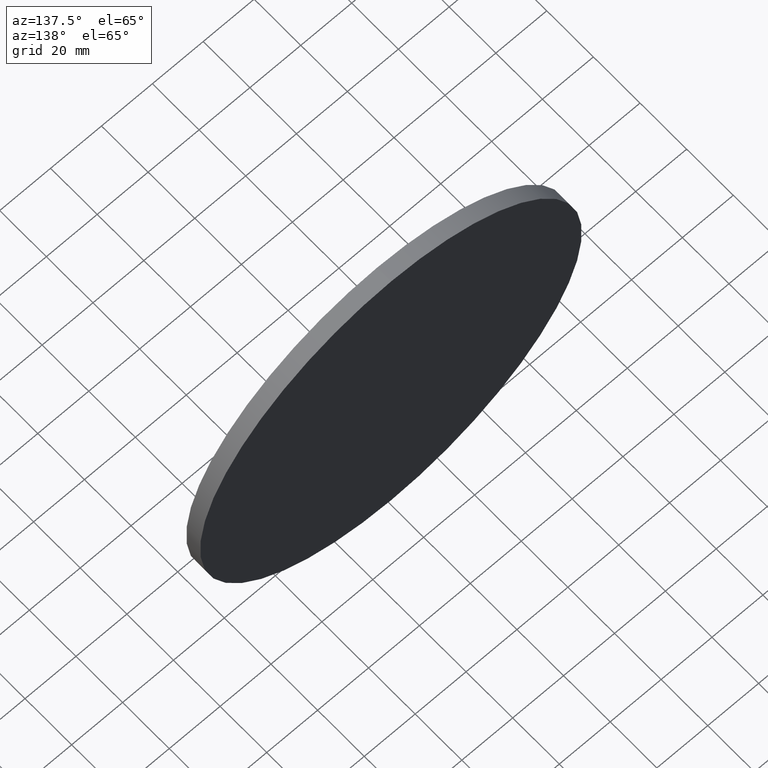
[diagram: clean part render]
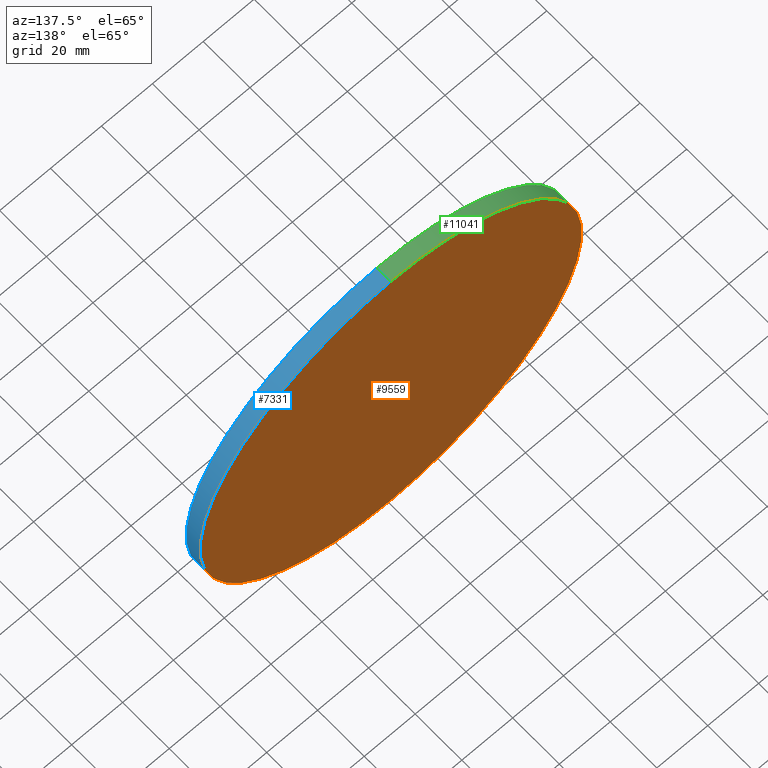
[diagram: same view with three faces highlighted in distinct colors, each labeled with its STEP entity id]
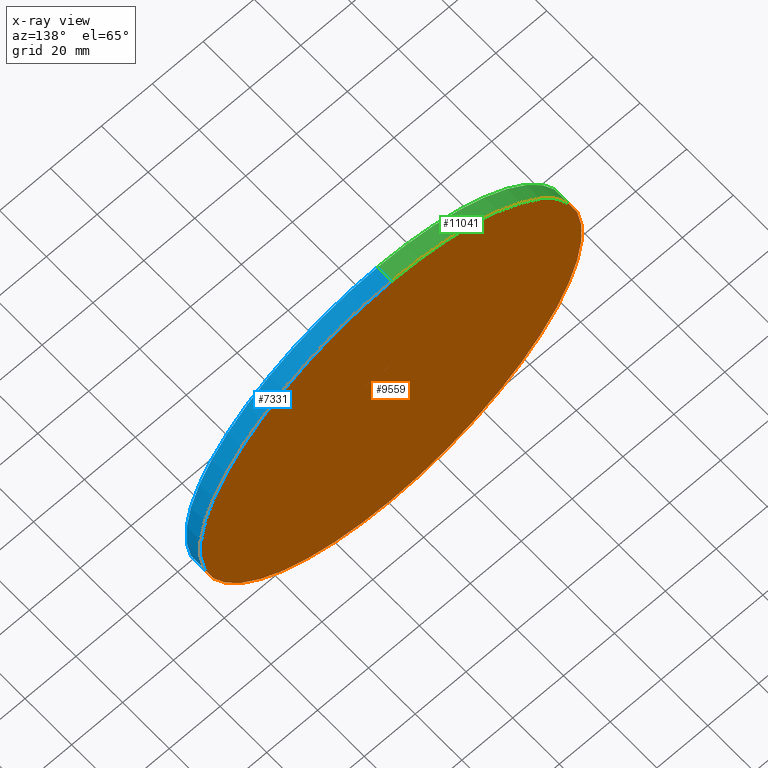
[diagram: x-ray of the same camera — body ghosted, the three highlighted faces saturated]
A machine part, auxiliary view with three faces highlighted in distinct colors.
The next image is the same camera in x-ray (body ghosted, the three faces saturated) — at least one of them is partly hidden behind the body in this view.
Their STEP definitions:

[orange] entity #9559 — the highlighted planar face has unit normal (0, 1, 0).
#367 = DIRECTION ( 'NONE',  ( 0.0000000000000000000, 1.000000000000000000, 0.0000000000000000000 ) ) ;
#1249 = CARTESIAN_POINT ( 'NONE',  ( 0.0000000000000000000, 6.000000000000000000, 0.0000000000000000000 ) ) ;
#1258 = CARTESIAN_POINT ( 'NONE',  ( 9.184850993605150300E-015, 6.000000000000000000, 75.00000000000001400 ) ) ;
#1377 = DIRECTION ( 'NONE',  ( 0.0000000000000000000, 0.0000000000000000000, 1.000000000000000000 ) ) ;
#1733 = AXIS2_PLACEMENT_3D ( 'NONE', #3307, #9606, #6048 ) ;
#1864 = DIRECTION ( 'NONE',  ( 0.0000000000000000000, 1.000000000000000000, 0.0000000000000000000 ) ) ;
#2247 = EDGE_CURVE ( 'NONE', #7227, #7898, #9831, .T. ) ;
#3307 = CARTESIAN_POINT ( 'NONE',  ( 0.0000000000000000000, 6.000000000000000000, 0.0000000000000000000 ) ) ;
#3703 = FACE_OUTER_BOUND ( 'NONE', #10417, .T. ) ;
#5483 = CARTESIAN_POINT ( 'NONE',  ( 0.0000000000000000000, 6.000000000000000000, 0.0000000000000000000 ) ) ;
#6048 = DIRECTION ( 'NONE',  ( 0.0000000000000000000, 0.0000000000000000000, 1.000000000000000000 ) ) ;
#6503 = DIRECTION ( 'NONE',  ( 0.0000000000000000000, -0.0000000000000000000, 1.000000000000000000 ) ) ;
#7227 = VERTEX_POINT ( 'NONE', #1258 ) ;
#7416 = PLANE ( 'NONE',  #8621 ) ;
#7536 = AXIS2_PLACEMENT_3D ( 'NONE', #1249, #367, #1377 ) ;
#7898 = VERTEX_POINT ( 'NONE', #10381 ) ;
#8621 = AXIS2_PLACEMENT_3D ( 'NONE', #5483, #1864, #6503 ) ;
#9173 = ORIENTED_EDGE ( 'NONE', *, *, #2247, .T. ) ;
#9559 = ADVANCED_FACE ( 'NONE', ( #3703 ), #7416, .T. ) ;
#9606 = DIRECTION ( 'NONE',  ( 0.0000000000000000000, 1.000000000000000000, 0.0000000000000000000 ) ) ;
#9653 = ORIENTED_EDGE ( 'NONE', *, *, #11679, .T. ) ;
#9721 = CIRCLE ( 'NONE', #7536, 75.00000000000001400 ) ;
#9831 = CIRCLE ( 'NONE', #1733, 75.00000000000001400 ) ;
#10381 = CARTESIAN_POINT ( 'NONE',  ( 0.0000000000000000000, 6.000000000000000000, -75.00000000000001400 ) ) ;
#10417 = EDGE_LOOP ( 'NONE', ( #9653, #9173 ) ) ;
#11679 = EDGE_CURVE ( 'NONE', #7898, #7227, #9721, .T. ) ;

[blue] entity #7331 — the highlighted cylindrical surface (partial cylindrical patch) has radius 75 mm, axis along (-0, -1, -0).
#426 = CYLINDRICAL_SURFACE ( 'NONE', #4986, 75.00000000000001400 ) ;
#1202 = CARTESIAN_POINT ( 'NONE',  ( 0.0000000000000000000, 0.0000000000000000000, -75.00000000000001400 ) ) ;
#1235 = DIRECTION ( 'NONE',  ( -0.0000000000000000000, -1.000000000000000000, -0.0000000000000000000 ) ) ;
#1258 = CARTESIAN_POINT ( 'NONE',  ( 9.184850993605150300E-015, 6.000000000000000000, 75.00000000000001400 ) ) ;
#1379 = DIRECTION ( 'NONE',  ( -0.0000000000000000000, -1.000000000000000000, -0.0000000000000000000 ) ) ;
#1488 = VECTOR ( 'NONE', #2147, 1000.000000000000000 ) ;
#1497 = EDGE_CURVE ( 'NONE', #10020, #2037, #8833, .T. ) ;
#1733 = AXIS2_PLACEMENT_3D ( 'NONE', #3307, #9606, #6048 ) ;
#2015 = EDGE_CURVE ( 'NONE', #7227, #10020, #3927, .T. ) ;
#2037 = VERTEX_POINT ( 'NONE', #1202 ) ;
#2147 = DIRECTION ( 'NONE',  ( -0.0000000000000000000, -1.000000000000000000, -0.0000000000000000000 ) ) ;
#2193 = ORIENTED_EDGE ( 'NONE', *, *, #10646, .F. ) ;
#2247 = EDGE_CURVE ( 'NONE', #7227, #7898, #9831, .T. ) ;
#2343 = DIRECTION ( 'NONE',  ( 0.0000000000000000000, 1.000000000000000000, 0.0000000000000000000 ) ) ;
#2537 = VECTOR ( 'NONE', #1379, 1000.000000000000000 ) ;
#3307 = CARTESIAN_POINT ( 'NONE',  ( 0.0000000000000000000, 6.000000000000000000, 0.0000000000000000000 ) ) ;
#3327 = DIRECTION ( 'NONE',  ( 0.0000000000000000000, 0.0000000000000000000, 1.000000000000000000 ) ) ;
#3611 = EDGE_LOOP ( 'NONE', ( #7524, #6469, #5406, #2193 ) ) ;
#3927 = LINE ( 'NONE', #9526, #1488 ) ;
#4959 = DIRECTION ( 'NONE',  ( 0.0000000000000000000, 0.0000000000000000000, -1.000000000000000000 ) ) ;
#4986 = AXIS2_PLACEMENT_3D ( 'NONE', #11428, #1235, #4959 ) ;
#5406 = ORIENTED_EDGE ( 'NONE', *, *, #1497, .T. ) ;
#5985 = CARTESIAN_POINT ( 'NONE',  ( 9.184850993605150300E-015, 0.0000000000000000000, 75.00000000000001400 ) ) ;
#6048 = DIRECTION ( 'NONE',  ( 0.0000000000000000000, 0.0000000000000000000, 1.000000000000000000 ) ) ;
#6469 = ORIENTED_EDGE ( 'NONE', *, *, #2015, .T. ) ;
#7227 = VERTEX_POINT ( 'NONE', #1258 ) ;
#7331 = ADVANCED_FACE ( 'NONE', ( #11528 ), #426, .T. ) ;
#7524 = ORIENTED_EDGE ( 'NONE', *, *, #2247, .F. ) ;
#7898 = VERTEX_POINT ( 'NONE', #10381 ) ;
#8833 = CIRCLE ( 'NONE', #9356, 75.00000000000001400 ) ;
#8869 = LINE ( 'NONE', #10538, #2537 ) ;
#9356 = AXIS2_PLACEMENT_3D ( 'NONE', #10688, #2343, #3327 ) ;
#9526 = CARTESIAN_POINT ( 'NONE',  ( 9.184850993605150300E-015, 6.000000000000000000, 75.00000000000001400 ) ) ;
#9606 = DIRECTION ( 'NONE',  ( 0.0000000000000000000, 1.000000000000000000, 0.0000000000000000000 ) ) ;
#9831 = CIRCLE ( 'NONE', #1733, 75.00000000000001400 ) ;
#10020 = VERTEX_POINT ( 'NONE', #5985 ) ;
#10381 = CARTESIAN_POINT ( 'NONE',  ( 0.0000000000000000000, 6.000000000000000000, -75.00000000000001400 ) ) ;
#10538 = CARTESIAN_POINT ( 'NONE',  ( 0.0000000000000000000, 6.000000000000000000, -75.00000000000001400 ) ) ;
#10646 = EDGE_CURVE ( 'NONE', #7898, #2037, #8869, .T. ) ;
#10688 = CARTESIAN_POINT ( 'NONE',  ( 0.0000000000000000000, 0.0000000000000000000, 0.0000000000000000000 ) ) ;
#11428 = CARTESIAN_POINT ( 'NONE',  ( 0.0000000000000000000, 6.000000000000000000, 0.0000000000000000000 ) ) ;
#11528 = FACE_OUTER_BOUND ( 'NONE', #3611, .T. ) ;

[green] entity #11041 — the highlighted cylindrical surface (partial cylindrical patch) has radius 75 mm, axis along (-0, -1, -0).
#97 = CYLINDRICAL_SURFACE ( 'NONE', #10477, 75.00000000000001400 ) ;
#367 = DIRECTION ( 'NONE',  ( 0.0000000000000000000, 1.000000000000000000, 0.0000000000000000000 ) ) ;
#387 = AXIS2_PLACEMENT_3D ( 'NONE', #7361, #8089, #2852 ) ;
#1202 = CARTESIAN_POINT ( 'NONE',  ( 0.0000000000000000000, 0.0000000000000000000, -75.00000000000001400 ) ) ;
#1249 = CARTESIAN_POINT ( 'NONE',  ( 0.0000000000000000000, 6.000000000000000000, 0.0000000000000000000 ) ) ;
#1258 = CARTESIAN_POINT ( 'NONE',  ( 9.184850993605150300E-015, 6.000000000000000000, 75.00000000000001400 ) ) ;
#1377 = DIRECTION ( 'NONE',  ( 0.0000000000000000000, 0.0000000000000000000, 1.000000000000000000 ) ) ;
#1379 = DIRECTION ( 'NONE',  ( -0.0000000000000000000, -1.000000000000000000, -0.0000000000000000000 ) ) ;
#1488 = VECTOR ( 'NONE', #2147, 1000.000000000000000 ) ;
#2015 = EDGE_CURVE ( 'NONE', #7227, #10020, #3927, .T. ) ;
#2037 = VERTEX_POINT ( 'NONE', #1202 ) ;
#2147 = DIRECTION ( 'NONE',  ( -0.0000000000000000000, -1.000000000000000000, -0.0000000000000000000 ) ) ;
#2357 = EDGE_LOOP ( 'NONE', ( #2844, #7773, #8854, #11414 ) ) ;
#2380 = DIRECTION ( 'NONE',  ( -0.0000000000000000000, -1.000000000000000000, -0.0000000000000000000 ) ) ;
#2537 = VECTOR ( 'NONE', #1379, 1000.000000000000000 ) ;
#2844 = ORIENTED_EDGE ( 'NONE', *, *, #2015, .F. ) ;
#2852 = DIRECTION ( 'NONE',  ( 0.0000000000000000000, 0.0000000000000000000, 1.000000000000000000 ) ) ;
#3693 = FACE_OUTER_BOUND ( 'NONE', #2357, .T. ) ;
#3927 = LINE ( 'NONE', #9526, #1488 ) ;
#5148 = CIRCLE ( 'NONE', #387, 75.00000000000001400 ) ;
#5985 = CARTESIAN_POINT ( 'NONE',  ( 9.184850993605150300E-015, 0.0000000000000000000, 75.00000000000001400 ) ) ;
#7227 = VERTEX_POINT ( 'NONE', #1258 ) ;
#7361 = CARTESIAN_POINT ( 'NONE',  ( 0.0000000000000000000, 0.0000000000000000000, 0.0000000000000000000 ) ) ;
#7536 = AXIS2_PLACEMENT_3D ( 'NONE', #1249, #367, #1377 ) ;
#7773 = ORIENTED_EDGE ( 'NONE', *, *, #11679, .F. ) ;
#7898 = VERTEX_POINT ( 'NONE', #10381 ) ;
#8089 = DIRECTION ( 'NONE',  ( 0.0000000000000000000, 1.000000000000000000, 0.0000000000000000000 ) ) ;
#8793 = EDGE_CURVE ( 'NONE', #2037, #10020, #5148, .T. ) ;
#8854 = ORIENTED_EDGE ( 'NONE', *, *, #10646, .T. ) ;
#8869 = LINE ( 'NONE', #10538, #2537 ) ;
#9526 = CARTESIAN_POINT ( 'NONE',  ( 9.184850993605150300E-015, 6.000000000000000000, 75.00000000000001400 ) ) ;
#9721 = CIRCLE ( 'NONE', #7536, 75.00000000000001400 ) ;
#10020 = VERTEX_POINT ( 'NONE', #5985 ) ;
#10381 = CARTESIAN_POINT ( 'NONE',  ( 0.0000000000000000000, 6.000000000000000000, -75.00000000000001400 ) ) ;
#10477 = AXIS2_PLACEMENT_3D ( 'NONE', #11673, #2380, #10683 ) ;
#10538 = CARTESIAN_POINT ( 'NONE',  ( 0.0000000000000000000, 6.000000000000000000, -75.00000000000001400 ) ) ;
#10646 = EDGE_CURVE ( 'NONE', #7898, #2037, #8869, .T. ) ;
#10683 = DIRECTION ( 'NONE',  ( 0.0000000000000000000, 0.0000000000000000000, -1.000000000000000000 ) ) ;
#11041 = ADVANCED_FACE ( 'NONE', ( #3693 ), #97, .T. ) ;
#11414 = ORIENTED_EDGE ( 'NONE', *, *, #8793, .T. ) ;
#11673 = CARTESIAN_POINT ( 'NONE',  ( 0.0000000000000000000, 6.000000000000000000, 0.0000000000000000000 ) ) ;
#11679 = EDGE_CURVE ( 'NONE', #7898, #7227, #9721, .T. ) ;